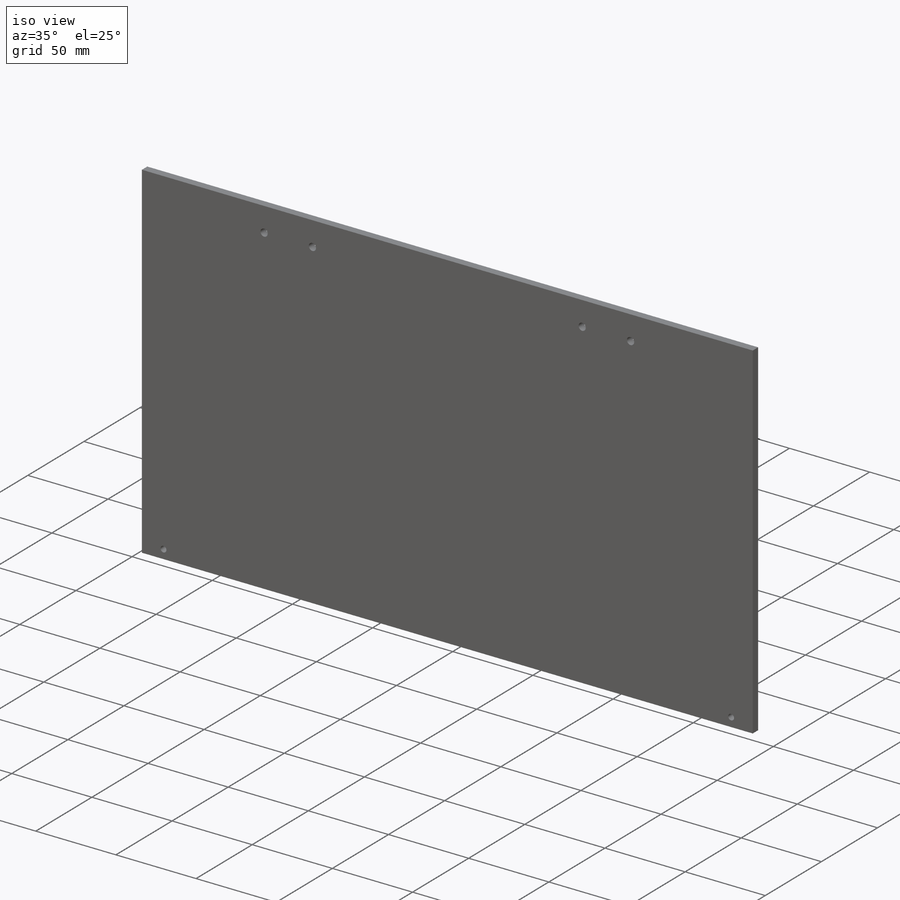
[diagram: iso view]
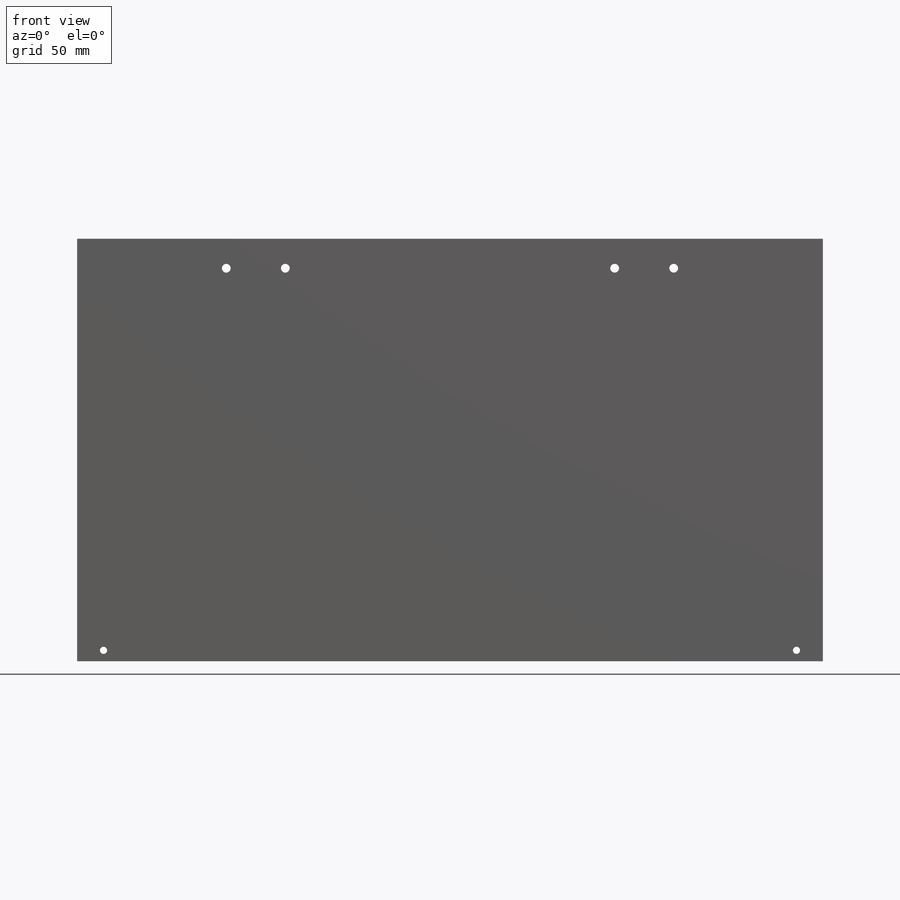
[diagram: front view]
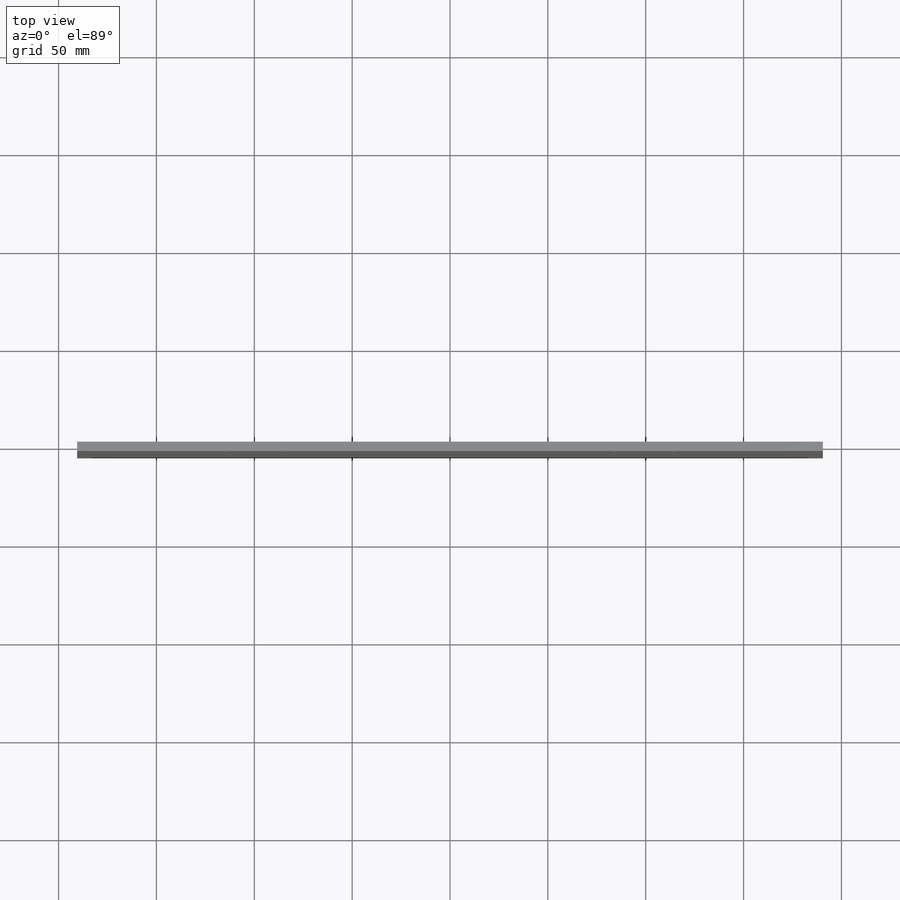
[diagram: top view]
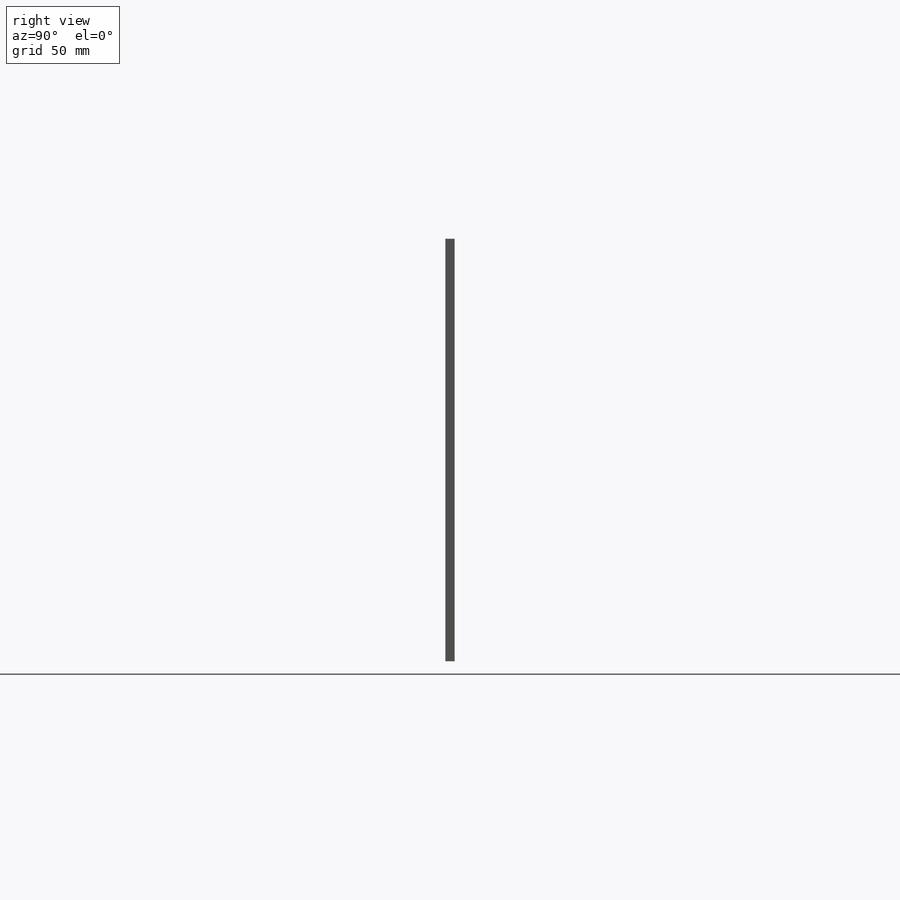
[diagram: right view]
SOLIDWORKS PART (.sldprt)
format: sldprt  version: not decoded by parser v0  size: 211,456 bytes
history: native  units: mm
features: sketch x5, hole x2, material x1, extrude x1 (+12 scaffold rows collapsed)
feature tree (21):
  scaffold x12  (default folders/planes/origin — collapsed)
  material  "Material <not specified>"
  sketch  "Sketch1"  dims[D1=215.9mm D2=381.0mm]
  extrude  "Boss-Extrude1"  Depth=4.7625mm
  hole  "#8 Clearance Hole1"  Diameter=4.4958mm Depth=74.422mm
  sketch  "Sketch3"  dims[D1=30.1625mm D2=30.1625mm D3=~15.08125mm D4=76.2mm D5=76.2mm D6=106.3625mm]
  sketch  "Sketch2"  dims[hole-wizard template sketch: 50 standard entries collapsed; hole parameters above]
  hole  "#6 Clearance Hole1"  Diameter=3.6576mm Depth=74.422mm
  sketch  "Sketch5"  dims[D1=~13.47089mm D2=~13.47089mm D3=5.588mm]
  sketch  "Sketch4"  dims[hole-wizard template sketch: 47 standard entries collapsed; hole parameters kept: c15.Hole Depth=74.422mm c15.D3=~14.816244mm c15.Drill Angle=118.0deg]
decode coverage: 8 of 8 modeling features carry decoded parameters
note: ~ marks probable driven/reference dimensions
note: suppression state not decoded; provenance and decode notes live in map.json
